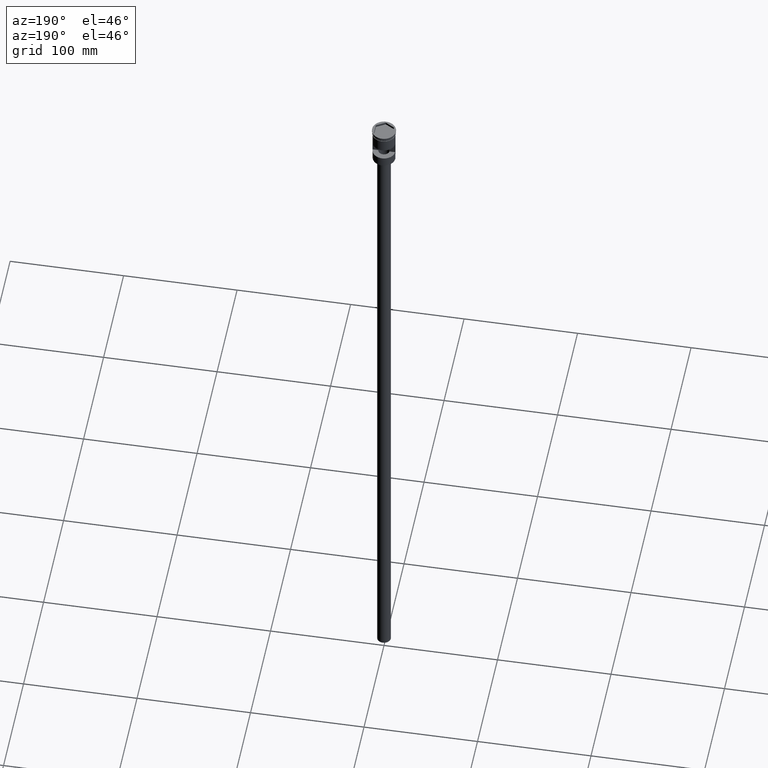
[diagram: clean part render]
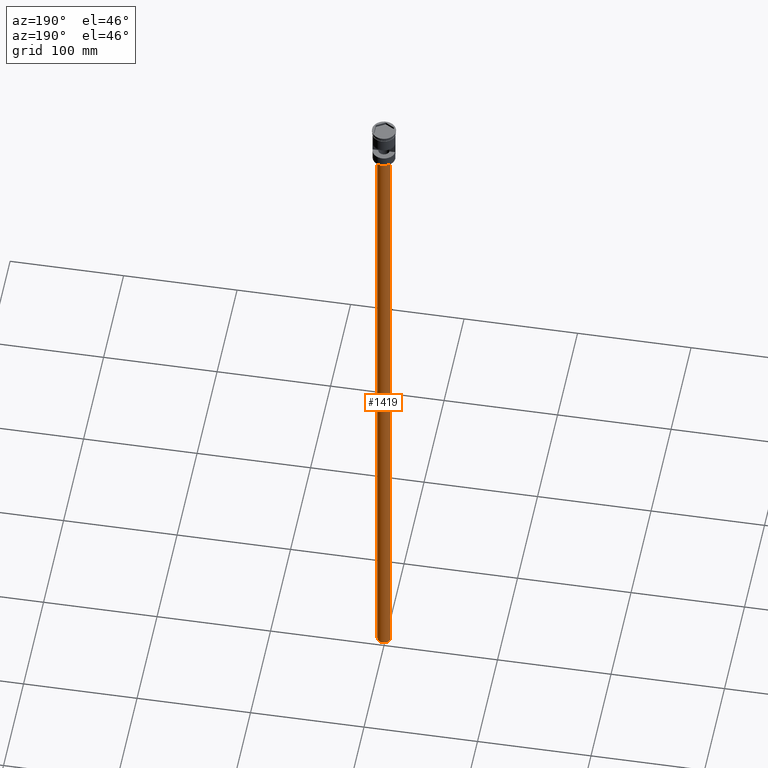
[diagram: same view with one face highlighted and labeled with its STEP entity id]
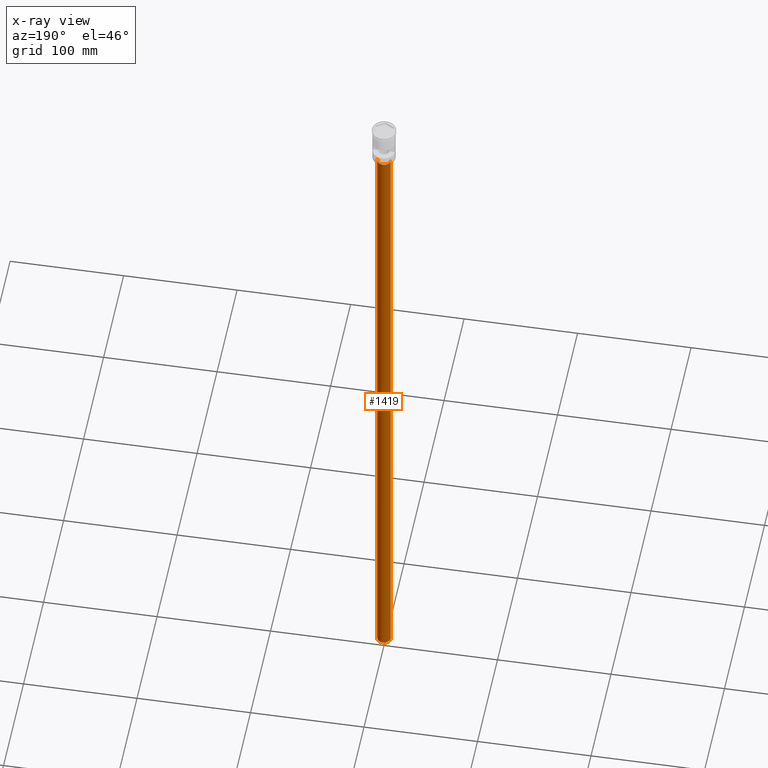
[diagram: x-ray of the same camera — body ghosted, the highlighted face saturated]
A machine part, auxiliary view. The second image highlights one B-rep face of the part: STEP entity #1419.
The next image is the same camera in x-ray: the body ghosted, the highlighted face saturated — about 0% of this face is hidden behind the body in this view.
In plain terms, the highlighted cylindrical surface (edge-blend (fillet) strip) has radius 6 mm, axis along (-0, -0, 1).
Its self-contained STEP definition (entity closure, byte-faithful):
#30 = VERTEX_POINT ( 'NONE', #1468 ) ;
#35 = CARTESIAN_POINT ( 'NONE',  ( -6.000000000000000888, 7.347880794884120722E-16, -37.00000000000000000 ) ) ;
#38 = DIRECTION ( 'NONE',  ( -1.000000000000000000, 0.000000000000000000, 0.000000000000000000 ) ) ;
#50 = ORIENTED_EDGE ( 'NONE', *, *, #1542, .F. ) ;
#54 = CARTESIAN_POINT ( 'NONE',  ( 0.000000000000000000, 0.000000000000000000, -37.00000000000000000 ) ) ;
#60 = DIRECTION ( 'NONE',  ( 0.000000000000000000, 0.000000000000000000, -1.000000000000000000 ) ) ;
#94 = AXIS2_PLACEMENT_3D ( 'NONE', #785, #165, #38 ) ;
#131 = DIRECTION ( 'NONE',  ( -0.000000000000000000, -0.000000000000000000, 1.000000000000000000 ) ) ;
#147 = CIRCLE ( 'NONE', #94, 6.000000000000000888 ) ;
#165 = DIRECTION ( 'NONE',  ( 0.000000000000000000, 0.000000000000000000, -1.000000000000000000 ) ) ;
#276 = EDGE_CURVE ( 'NONE', #1535, #1528, #483, .T. ) ;
#298 = EDGE_CURVE ( 'NONE', #30, #358, #147, .T. ) ;
#343 = DIRECTION ( 'NONE',  ( -0.000000000000000000, -0.000000000000000000, 1.000000000000000000 ) ) ;
#358 = VERTEX_POINT ( 'NONE', #536 ) ;
#407 = EDGE_CURVE ( 'NONE', #30, #1535, #452, .T. ) ;
#444 = CARTESIAN_POINT ( 'NONE',  ( -6.000000000000000888, 7.347880794884120722E-16, -634.0000000000000000 ) ) ;
#452 = LINE ( 'NONE', #444, #1595 ) ;
#483 = CIRCLE ( 'NONE', #668, 6.000000000000000888 ) ;
#526 = CARTESIAN_POINT ( 'NONE',  ( 6.000000000000000888, 0.000000000000000000, -634.0000000000000000 ) ) ;
#532 = LINE ( 'NONE', #526, #1372 ) ;
#536 = CARTESIAN_POINT ( 'NONE',  ( 6.000000000000000888, 0.000000000000000000, -634.0000000000000000 ) ) ;
#573 = EDGE_LOOP ( 'NONE', ( #887, #883, #664, #50 ) ) ;
#638 = CARTESIAN_POINT ( 'NONE',  ( 6.000000000000000888, 0.000000000000000000, -37.00000000000000000 ) ) ;
#664 = ORIENTED_EDGE ( 'NONE', *, *, #276, .T. ) ;
#668 = AXIS2_PLACEMENT_3D ( 'NONE', #54, #60, #1540 ) ;
#753 = CARTESIAN_POINT ( 'NONE',  ( 0.000000000000000000, 0.000000000000000000, -634.0000000000000000 ) ) ;
#769 = FACE_OUTER_BOUND ( 'NONE', #573, .T. ) ;
#785 = CARTESIAN_POINT ( 'NONE',  ( 0.000000000000000000, 0.000000000000000000, -634.0000000000000000 ) ) ;
#802 = AXIS2_PLACEMENT_3D ( 'NONE', #753, #131, #1464 ) ;
#883 = ORIENTED_EDGE ( 'NONE', *, *, #407, .T. ) ;
#887 = ORIENTED_EDGE ( 'NONE', *, *, #298, .F. ) ;
#1372 = VECTOR ( 'NONE', #1417, 1000.000000000000000 ) ;
#1417 = DIRECTION ( 'NONE',  ( -0.000000000000000000, -0.000000000000000000, 1.000000000000000000 ) ) ;
#1419 = ADVANCED_FACE ( 'NONE', ( #769 ), #1503, .T. ) ;
#1464 = DIRECTION ( 'NONE',  ( 1.000000000000000000, 0.000000000000000000, 0.000000000000000000 ) ) ;
#1468 = CARTESIAN_POINT ( 'NONE',  ( -6.000000000000000888, 7.347880794884120722E-16, -634.0000000000000000 ) ) ;
#1503 = CYLINDRICAL_SURFACE ( 'NONE', #802, 6.000000000000000888 ) ;
#1528 = VERTEX_POINT ( 'NONE', #638 ) ;
#1535 = VERTEX_POINT ( 'NONE', #35 ) ;
#1540 = DIRECTION ( 'NONE',  ( -1.000000000000000000, 0.000000000000000000, 0.000000000000000000 ) ) ;
#1542 = EDGE_CURVE ( 'NONE', #358, #1528, #532, .T. ) ;
#1595 = VECTOR ( 'NONE', #343, 1000.000000000000000 ) ;